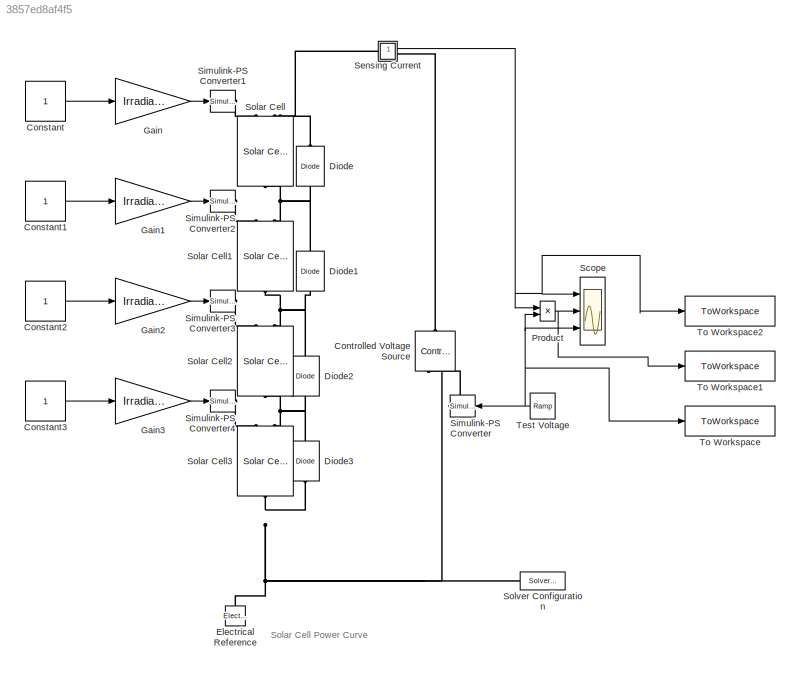
MODEL slx_3857ed8af4f5
KIND model
CONFIG AbsTol = 1e-3
CONFIG EnableMultiTasking = on
CONFIG FixedStep = auto
CONFIG MaxStep = 0.1
CONFIG MinStep = auto
CONFIG PreLoadFcn = irradiance = 1000;\ntemperature = 25;
CONFIG RelTol = 1e-3
CONFIG SampleTimeConstraint = Unconstrained
CONFIG Solver = VariableStepAuto
CONFIG SolverName = VariableStepAuto
CONFIG StartTime = 0.0
CONFIG StopFcn = ee_addSimlogTimeStamp(bdroot)
CONFIG StopTime = 250
BLOCK [Constant] Constant
  SampleTime = -1
  VectorParams1D = off
BLOCK [Constant] Constant1
  SampleTime = -1
  VectorParams1D = off
BLOCK [Constant] Constant2
  SampleTime = -1
  VectorParams1D = off
BLOCK [Constant] Constant3
  SampleTime = -1
  VectorParams1D = off
BLOCK [Reference] Controlled Voltage Source  REF=fl_lib/Electrical/Electrical Sources/Controlled Voltage
Source
  NameLocation = right
  Ports = [0, 0, 0, 0, 0, 1, 2]
  SourceBlock = fl_lib/Electrical/Electrical Sources/Controlled Voltage\nSource
  SourceProductBaseCode = MT,SS
  SourceType = Controlled Voltage\nSource
BLOCK [Reference] Diode  REF=fl_lib/Electrical/Electrical Elements/Diode
  NameLocation = right
  Ports = [0, 0, 0, 0, 0, 1, 1]
  SourceBlock = fl_lib/Electrical/Electrical Elements/Diode
  SourceProductBaseCode = SS
  SourceType = Diode
BLOCK [Reference] Diode1  REF=fl_lib/Electrical/Electrical Elements/Diode
  NameLocation = right
  Ports = [0, 0, 0, 0, 0, 1, 1]
  SourceBlock = fl_lib/Electrical/Electrical Elements/Diode
  SourceProductBaseCode = SS
  SourceType = Diode
BLOCK [Reference] Diode2  REF=fl_lib/Electrical/Electrical Elements/Diode
  NameLocation = right
  Ports = [0, 0, 0, 0, 0, 1, 1]
  SourceBlock = fl_lib/Electrical/Electrical Elements/Diode
  SourceProductBaseCode = SS
  SourceType = Diode
BLOCK [Reference] Diode3  REF=fl_lib/Electrical/Electrical Elements/Diode
  NameLocation = right
  Ports = [0, 0, 0, 0, 0, 1, 1]
  SourceBlock = fl_lib/Electrical/Electrical Elements/Diode
  SourceProductBaseCode = SS
  SourceType = Diode
BLOCK [Reference] Electrical Reference  REF=fl_lib/Electrical/Electrical Elements/Electrical Reference
  NameLocation = right
  Ports = [0, 0, 0, 0, 0, 1]
  SourceBlock = fl_lib/Electrical/Electrical Elements/Electrical Reference
  SourceProductBaseCode = MT,SS
  SourceType = Electrical Reference
BLOCK [Gain] Gain
  Gain = Irradiance11
  NameLocation = left
BLOCK [Gain] Gain1
  Gain = Irradiance21
BLOCK [Gain] Gain2
  Gain = Irradiance31
BLOCK [Gain] Gain3
  Gain = Irradiance41
BLOCK [Product] Product
  InputSameDT = on
  OutDataTypeStr = Inherit: Same as first input
  Ports = [2, 1]
  SaturateOnIntegerOverflow = on
BLOCK [Scope] Scope
  Floating = off
  NumInputPorts = 3
  Ports = [3]
  ScopeSpecificationString = Simulink.scopes.TimeScopeBlockCfg('CurrentConfiguration', extmgr.ConfigurationSet(extmgr.Configuration('Core','General UI',true),extmgr.Configuration('Core','Source UI',true),extmgr.Configuration('Sources','WiredSimulink',true,'DataLogging',true,'DataLoggingVariableName','I','DataLoggingSaveFormat','StructureWithTime','DataLoggingDecimation','1','DataLoggingDecimateData',true),extmgr.Configuration...<+2930ch>
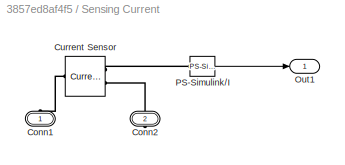
BLOCK [SubSystem] Sensing Current
  Ports = [0, 1, 0, 0, 0, 1, 1]
  RequestExecContextInheritance = off
BLOCK [PMIOPort] Sensing Current/Conn1
  NameLocation = right
  Side = Left
BLOCK [PMIOPort] Sensing Current/Conn2
  NameLocation = right
  Port = 2
  Side = Right
BLOCK [Reference] Sensing Current/Current Sensor  REF=fl_lib/Electrical/Electrical Sensors/Current Sensor
  Ports = [0, 0, 0, 0, 0, 1, 2]
  SourceBlock = fl_lib/Electrical/Electrical Sensors/Current Sensor
  SourceProductBaseCode = MT,SS
  SourceType = Current Sensor
BLOCK [Outport] Sensing Current/Out1
  VectorParamsAs1DForOutWhenUnconnected = off
BLOCK [Reference] Sensing Current/PS-Simulink//I  REF=nesl_utility/PS-Simulink
Converter
  Ports = [0, 1, 0, 0, 0, 1]
  SourceBlock = nesl_utility/PS-Simulink\nConverter
  SourceProductBaseCode = MT,SS
  SourceType = PS-Simulink\nConverter
BLOCK [Reference] Simulink-PS Converter  REF=nesl_utility/Simulink-PS
Converter
  Ports = [1, 0, 0, 0, 0, 0, 1]
  SourceBlock = nesl_utility/Simulink-PS\nConverter
  SourceProductBaseCode = MT,SS
  SourceType = Simulink-PS\nConverter
BLOCK [Reference] Simulink-PS Converter1  REF=nesl_utility/Simulink-PS
Converter
  NameLocation = top
  Ports = [1, 0, 0, 0, 0, 0, 1]
  SourceBlock = nesl_utility/Simulink-PS\nConverter
  SourceProductBaseCode = MT,SS
  SourceType = Simulink-PS\nConverter
BLOCK [Reference] Simulink-PS Converter2  REF=nesl_utility/Simulink-PS
Converter
  NameLocation = top
  Ports = [1, 0, 0, 0, 0, 0, 1]
  SourceBlock = nesl_utility/Simulink-PS\nConverter
  SourceProductBaseCode = MT,SS
  SourceType = Simulink-PS\nConverter
BLOCK [Reference] Simulink-PS Converter3  REF=nesl_utility/Simulink-PS
Converter
  NameLocation = top
  Ports = [1, 0, 0, 0, 0, 0, 1]
  SourceBlock = nesl_utility/Simulink-PS\nConverter
  SourceProductBaseCode = MT,SS
  SourceType = Simulink-PS\nConverter
BLOCK [Reference] Simulink-PS Converter4  REF=nesl_utility/Simulink-PS
Converter
  NameLocation = top
  Ports = [1, 0, 0, 0, 0, 0, 1]
  SourceBlock = nesl_utility/Simulink-PS\nConverter
  SourceProductBaseCode = MT,SS
  SourceType = Simulink-PS\nConverter
BLOCK [Reference] Solar Cell  REF=ee_lib/Sources/Solar Cell
  NameLocation = left
  Ports = [0, 0, 0, 0, 0, 2, 1]
  SourceBlock = ee_lib/Sources/Solar Cell
  SourceProductBaseCode = PS
  SourceType = Solar Cell
BLOCK [Reference] Solar Cell1  REF=ee_lib/Sources/Solar Cell
  NameLocation = left
  Ports = [0, 0, 0, 0, 0, 2, 1]
  SourceBlock = ee_lib/Sources/Solar Cell
  SourceProductBaseCode = PS
  SourceType = Solar Cell
BLOCK [Reference] Solar Cell2  REF=ee_lib/Sources/Solar Cell
  NameLocation = left
  Ports = [0, 0, 0, 0, 0, 2, 1]
  SourceBlock = ee_lib/Sources/Solar Cell
  SourceProductBaseCode = PS
  SourceType = Solar Cell
BLOCK [Reference] Solar Cell3  REF=ee_lib/Sources/Solar Cell
  NameLocation = left
  Ports = [0, 0, 0, 0, 0, 2, 1]
  SourceBlock = ee_lib/Sources/Solar Cell
  SourceProductBaseCode = PS
  SourceType = Solar Cell
BLOCK [Reference] Solver Configuration  REF=nesl_utility/Solver
Configuration
  NameLocation = top
  Ports = [0, 0, 0, 0, 0, 0, 1]
  SourceBlock = nesl_utility/Solver\nConfiguration
  SourceProductBaseCode = MT,SS
  SourceType = Solver\nConfiguration
BLOCK [Reference] Test Voltage  REF=simulink/Sources/Ramp
  Ports = [0, 1]
  SourceBlock = simulink/Sources/Ramp
  SourceProductBaseCode = SL
  SourceType = Ramp
BLOCK [ToWorkspace] To Workspace
  FixptAsFi = on
  MaxDataPoints = inf
  Ports = [1]
  SampleTime = -1
  VariableName = voltage
BLOCK [ToWorkspace] To Workspace1
  FixptAsFi = on
  MaxDataPoints = inf
  Ports = [1]
  SampleTime = -1
  VariableName = power
BLOCK [ToWorkspace] To Workspace2
  FixptAsFi = on
  MaxDataPoints = inf
  Ports = [1]
  SampleTime = -1
  VariableName = current
ANNOTATION (root): Solar Cell Power Curve
LINE Constant1:1 -> Gain1:1
LINE Constant2:1 -> Gain2:1
LINE Constant3:1 -> Gain3:1
LINE Constant:1 -> Gain:1
LINE Gain1:1 -> Simulink-PS Converter2:1
LINE Gain2:1 -> Simulink-PS Converter3:1
LINE Gain3:1 -> Simulink-PS Converter4:1
LINE Gain:1 -> Simulink-PS Converter1:1
NET Product:1 -> Scope:2, To Workspace1:1
LINE Sensing Current/PS-Simulink//I:1 -> Sensing Current/Out1:1
NET Sensing Current:1 -> Product:1, Scope:1, To Workspace2:1
NET Test Voltage:1 -> Product:2, Scope:3, Simulink-PS Converter:1, To Workspace:1
PLINE Controlled Voltage Source:LConn1 -- Sensing Current:RConn1
PLINE Controlled Voltage Source:RConn1 -- Simulink-PS Converter:RConn1
PNET net1: Controlled Voltage Source:RConn2 -- Diode3:LConn1 -- Electrical Reference:LConn1 -- Solar Cell3:RConn1 -- Solver Configuration:RConn1
PNET net2: Diode1:LConn1 -- Diode2:RConn1 -- Solar Cell1:RConn1 -- Solar Cell2:LConn2
PNET net3: Diode1:RConn1 -- Diode:LConn1 -- Solar Cell1:LConn2 -- Solar Cell:RConn1
PNET net4: Diode2:LConn1 -- Diode3:RConn1 -- Solar Cell2:RConn1 -- Solar Cell3:LConn2
PNET net5: Diode:RConn1 -- Sensing Current:LConn1 -- Solar Cell:LConn2
PLINE Sensing Current/Conn1:RConn1 -- Sensing Current/Current Sensor:LConn1
PLINE Sensing Current/Conn2:RConn1 -- Sensing Current/Current Sensor:RConn2
PLINE Sensing Current/Current Sensor:RConn1 -- Sensing Current/PS-Simulink//I:LConn1
PLINE Simulink-PS Converter1:RConn1 -- Solar Cell:LConn1
PLINE Simulink-PS Converter2:RConn1 -- Solar Cell1:LConn1
PLINE Simulink-PS Converter3:RConn1 -- Solar Cell2:LConn1
PLINE Simulink-PS Converter4:RConn1 -- Solar Cell3:LConn1
note: NET lines group one-source signal fan-out (src -> all destinations, sorted); 1:1 wires keep LINE; PNET lines group multi-terminal physical nets as a canonical sorted terminal list (undirected conserving connections); 2-terminal nets keep the pairwise PLINE form
